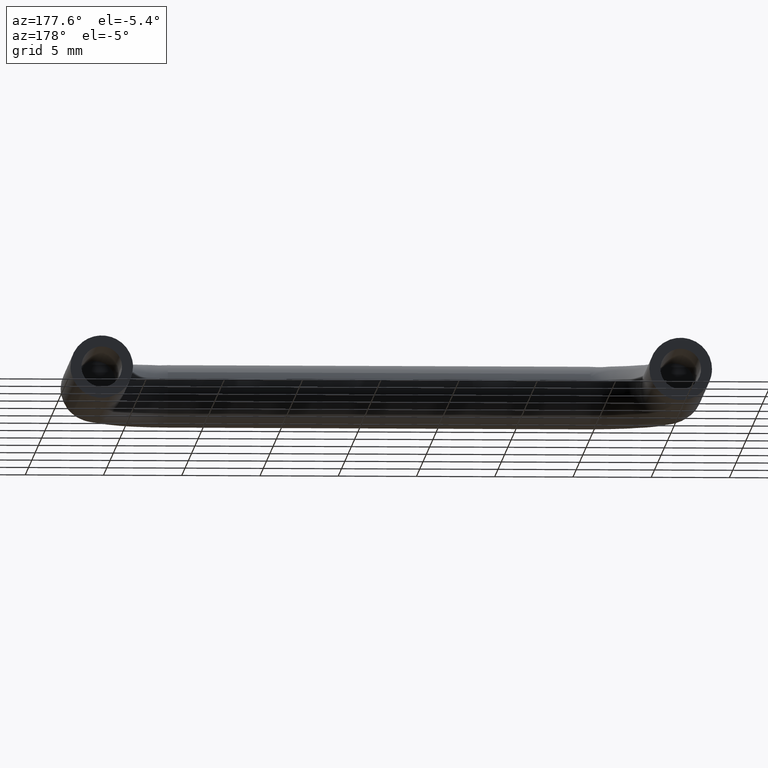
[diagram: clean part render]
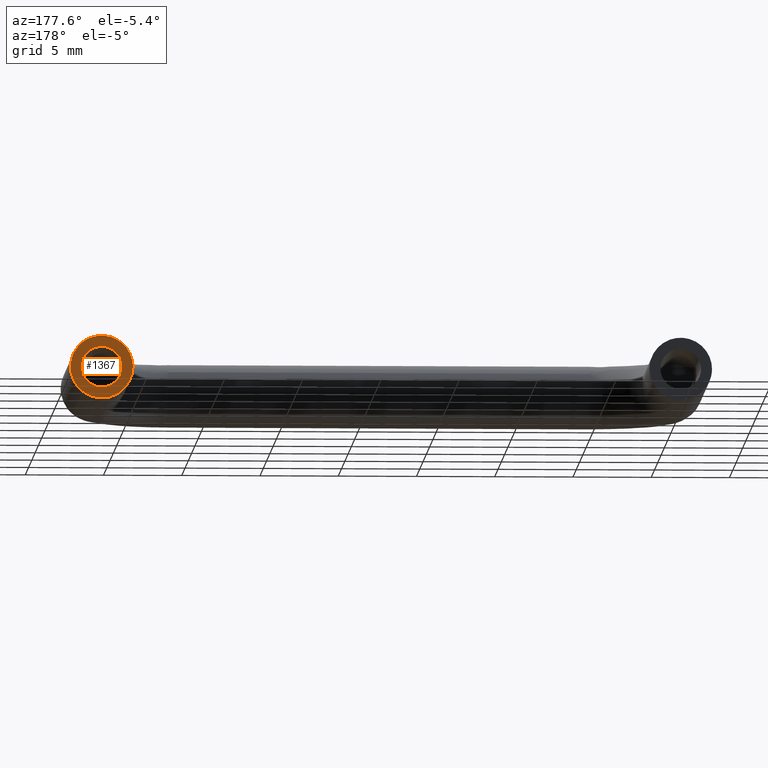
[diagram: same view with one face highlighted and labeled with its STEP entity id]
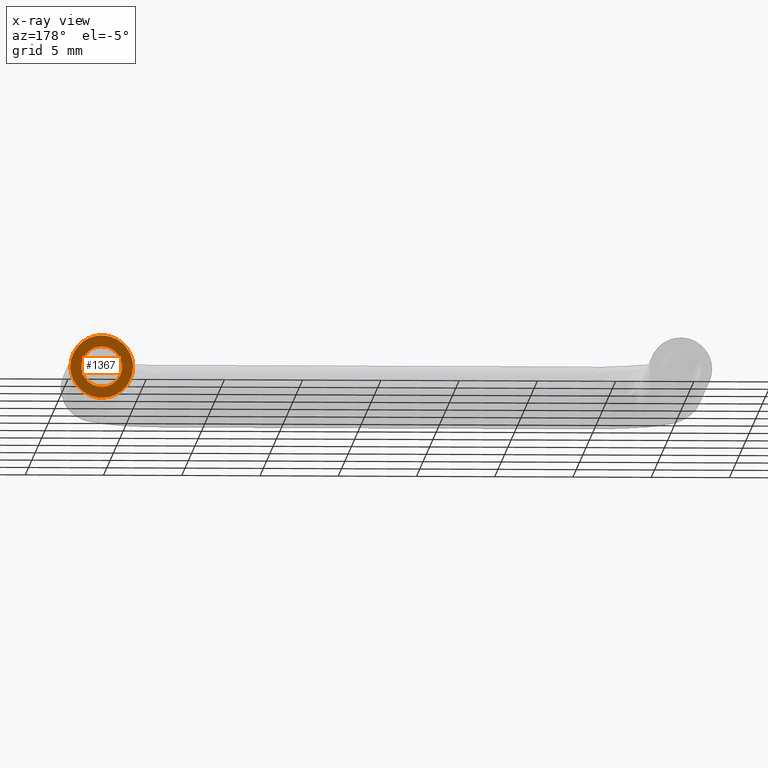
[diagram: x-ray of the same camera — body ghosted, the highlighted face saturated]
A machine part, auxiliary view. The second image highlights one B-rep face of the part: STEP entity #1367.
The next image is the same camera in x-ray: the body ghosted, the highlighted face saturated — about 0% of this face is hidden behind the body in this view.
In plain terms, the highlighted face is a freeform B-spline surface patch.
Its self-contained STEP definition (entity closure, byte-faithful):
#261=CARTESIAN_POINT('',(35.704007466147630,-2.775558E-017,0.101996824455019));
#262=VERTEX_POINT('',#261);
#268=CARTESIAN_POINT('',(37.0,0.0,1.300000000000000));
#269=VERTEX_POINT('',#268);
#270=CARTESIAN_POINT('',(37.0,0.0,1.300000000000000));
#271=CARTESIAN_POINT('',(35.798292360860728,0.0,1.300000000000000));
#272=CARTESIAN_POINT('',(35.704007466147630,-2.775558E-017,0.101996824455019));
#280=(BOUNDED_CURVE()B_SPLINE_CURVE(2,(#270,#271,#272),.UNSPECIFIED.,.F.,.U.)B_SPLINE_CURVE_WITH_KNOTS((3,3),(0.0,0.236331300630434),.UNSPECIFIED.)CURVE()GEOMETRIC_REPRESENTATION_ITEM()RATIONAL_B_SPLINE_CURVE((1.0,0.723120658607931,0.969723356166946))REPRESENTATION_ITEM(''));
#281=EDGE_CURVE('',#269,#262,#280,.T.);
#283=CARTESIAN_POINT('',(38.295992533852370,-2.775558E-017,-0.101996824455019));
#284=VERTEX_POINT('',#283);
#285=CARTESIAN_POINT('',(38.295992533852370,-2.775558E-017,-0.101996824455019));
#286=CARTESIAN_POINT('',(38.299999999999997,0.0,-0.051077139118831));
#287=CARTESIAN_POINT('',(38.299999999999997,0.0,0.0));
#288=CARTESIAN_POINT('',(38.299999999999997,0.0,1.300000000000000));
#289=CARTESIAN_POINT('',(37.0,0.0,1.300000000000000));
#297=(BOUNDED_CURVE()B_SPLINE_CURVE(2,(#285,#286,#287,#288,#289),.UNSPECIFIED.,.F.,.U.)B_SPLINE_CURVE_WITH_KNOTS((3,2,3),(0.736331300630434,0.750000000000000,1.0),.UNSPECIFIED.)CURVE()GEOMETRIC_REPRESENTATION_ITEM()RATIONAL_B_SPLINE_CURVE((0.969723356166946,0.983986122578617,1.0,0.707106781186548,1.0))REPRESENTATION_ITEM(''));
#298=EDGE_CURVE('',#284,#269,#297,.T.);
#374=CARTESIAN_POINT('',(37.0,0.0,-1.300000000000000));
#375=VERTEX_POINT('',#374);
#376=CARTESIAN_POINT('',(37.0,0.0,-1.300000000000000));
#377=CARTESIAN_POINT('',(38.201707639139272,0.0,-1.300000000000000));
#378=CARTESIAN_POINT('',(38.295992533852377,-2.775558E-017,-0.101996824455019));
#386=(BOUNDED_CURVE()B_SPLINE_CURVE(2,(#376,#377,#378),.UNSPECIFIED.,.F.,.U.)B_SPLINE_CURVE_WITH_KNOTS((3,3),(0.500000000000000,0.736331300630435),.UNSPECIFIED.)CURVE()GEOMETRIC_REPRESENTATION_ITEM()RATIONAL_B_SPLINE_CURVE((1.0,0.723120658607929,0.969723356166948))REPRESENTATION_ITEM(''));
#387=EDGE_CURVE('',#375,#284,#386,.T.);
#389=CARTESIAN_POINT('',(35.704007466147630,-2.775558E-017,0.101996824455019));
#390=CARTESIAN_POINT('',(35.700000000000010,0.0,0.051077139118831));
#391=CARTESIAN_POINT('',(35.700000000000003,0.0,0.0));
#392=CARTESIAN_POINT('',(35.700000000000003,0.0,-1.300000000000000));
#393=CARTESIAN_POINT('',(37.0,0.0,-1.300000000000000));
#401=(BOUNDED_CURVE()B_SPLINE_CURVE(2,(#389,#390,#391,#392,#393),.UNSPECIFIED.,.F.,.U.)B_SPLINE_CURVE_WITH_KNOTS((3,2,3),(0.236331300630434,0.250000000000000,0.500000000000000),.UNSPECIFIED.)CURVE()GEOMETRIC_REPRESENTATION_ITEM()RATIONAL_B_SPLINE_CURVE((0.969723356166946,0.983986122578617,1.0,0.707106781186548,1.0))REPRESENTATION_ITEM(''));
#402=EDGE_CURVE('',#262,#375,#401,.T.);
#475=CARTESIAN_POINT('',(35.754972200187481,4.461709E-015,1.565217485747734));
#476=VERTEX_POINT('',#475);
#482=CARTESIAN_POINT('',(34.999999999999993,5.204170E-015,0.0));
#483=VERTEX_POINT('',#482);
#484=CARTESIAN_POINT('',(35.754972200187481,4.461709E-015,1.565217485747734));
#485=CARTESIAN_POINT('',(35.0,5.204170E-015,0.964686642030370));
#486=CARTESIAN_POINT('',(34.999999999999993,5.204170E-015,0.0));
#494=(BOUNDED_CURVE()B_SPLINE_CURVE(2,(#484,#485,#486),.UNSPECIFIED.,.F.,.U.)B_SPLINE_CURVE_WITH_KNOTS((3,3),(0.857863734890325,1.0),.UNSPECIFIED.)CURVE()GEOMETRIC_REPRESENTATION_ITEM()RATIONAL_B_SPLINE_CURVE((0.856305664418394,0.833477007207620,1.0))REPRESENTATION_ITEM(''));
#495=EDGE_CURVE('',#476,#483,#494,.T.);
#497=CARTESIAN_POINT('',(38.245027799812519,5.405398E-015,-1.565217485747733));
#498=VERTEX_POINT('',#497);
#499=CARTESIAN_POINT('',(34.999999999999993,5.204170E-015,0.0));
#500=CARTESIAN_POINT('',(34.999999999999993,5.204170E-015,-2.000000000000000));
#501=CARTESIAN_POINT('',(37.0,5.204170E-015,-2.0));
#502=CARTESIAN_POINT('',(37.698430210661726,5.204170E-015,-2.000000000000000));
#503=CARTESIAN_POINT('',(38.245027799812519,5.405398E-015,-1.565217485747733));
#511=(BOUNDED_CURVE()B_SPLINE_CURVE(2,(#499,#500,#501,#502,#503),.UNSPECIFIED.,.F.,.U.)B_SPLINE_CURVE_WITH_KNOTS((3,2,3),(0.0,0.250000000000000,0.357863734890326),.UNSPECIFIED.)CURVE()GEOMETRIC_REPRESENTATION_ITEM()RATIONAL_B_SPLINE_CURVE((1.0,0.707106781186548,1.0,0.873629773978926,0.856305664418394))REPRESENTATION_ITEM(''));
#512=EDGE_CURVE('',#483,#498,#511,.T.);
#556=CARTESIAN_POINT('',(39.0,5.204170E-015,0.0));
#557=VERTEX_POINT('',#556);
#558=CARTESIAN_POINT('',(38.245027799812519,5.405398E-015,-1.565217485747733));
#559=CARTESIAN_POINT('',(39.0,5.204170E-015,-0.964686642030361));
#560=CARTESIAN_POINT('',(39.0,5.204170E-015,0.0));
#568=(BOUNDED_CURVE()B_SPLINE_CURVE(2,(#558,#559,#560),.UNSPECIFIED.,.F.,.U.)B_SPLINE_CURVE_WITH_KNOTS((3,3),(0.357863734890326,0.500000000000000),.UNSPECIFIED.)CURVE()GEOMETRIC_REPRESENTATION_ITEM()RATIONAL_B_SPLINE_CURVE((0.856305664418394,0.833477007207621,1.0))REPRESENTATION_ITEM(''));
#569=EDGE_CURVE('',#498,#557,#568,.T.);
#571=CARTESIAN_POINT('',(39.0,5.204170E-015,0.0));
#572=CARTESIAN_POINT('',(39.000000000000007,5.204170E-015,2.000000000000000));
#573=CARTESIAN_POINT('',(37.0,5.204170E-015,2.0));
#574=CARTESIAN_POINT('',(36.301569789338281,5.204170E-015,2.000000000000000));
#575=CARTESIAN_POINT('',(35.754972200187488,4.461709E-015,1.565217485747734));
#583=(BOUNDED_CURVE()B_SPLINE_CURVE(2,(#571,#572,#573,#574,#575),.UNSPECIFIED.,.F.,.U.)B_SPLINE_CURVE_WITH_KNOTS((3,2,3),(0.500000000000000,0.750000000000000,0.857863734890325),.UNSPECIFIED.)CURVE()GEOMETRIC_REPRESENTATION_ITEM()RATIONAL_B_SPLINE_CURVE((1.0,0.707106781186548,1.0,0.873629773978927,0.856305664418394))REPRESENTATION_ITEM(''));
#584=EDGE_CURVE('',#557,#476,#583,.T.);
#1350=CARTESIAN_POINT('',(39.199799992247222,5.204170E-015,-2.199799198391974));
#1351=CARTESIAN_POINT('',(34.800199900464413,5.204170E-015,-2.199799198391974));
#1352=CARTESIAN_POINT('',(39.199799992247222,5.204170E-015,2.199799162629187));
#1353=CARTESIAN_POINT('',(34.800199900464413,5.204170E-015,2.199799162629187));
#1354=B_SPLINE_SURFACE_WITH_KNOTS('',1,1,((#1350,#1352),(#1351,#1353)),.UNSPECIFIED.,.F.,.F.,.U.,(2,2),(2,2),(0.0,4.399600091782816),(0.0,4.399598361021161),.UNSPECIFIED.);
#1355=ORIENTED_EDGE('',*,*,#495,.F.);
#1356=ORIENTED_EDGE('',*,*,#584,.F.);
#1357=ORIENTED_EDGE('',*,*,#569,.F.);
#1358=ORIENTED_EDGE('',*,*,#512,.F.);
#1359=EDGE_LOOP('',(#1355,#1356,#1357,#1358));
#1360=FACE_OUTER_BOUND('',#1359,.T.);
#1361=ORIENTED_EDGE('',*,*,#387,.T.);
#1362=ORIENTED_EDGE('',*,*,#298,.T.);
#1363=ORIENTED_EDGE('',*,*,#281,.T.);
#1364=ORIENTED_EDGE('',*,*,#402,.T.);
#1365=EDGE_LOOP('',(#1361,#1362,#1363,#1364));
#1366=FACE_BOUND('',#1365,.T.);
#1367=ADVANCED_FACE('',(#1360,#1366),#1354,.T.);